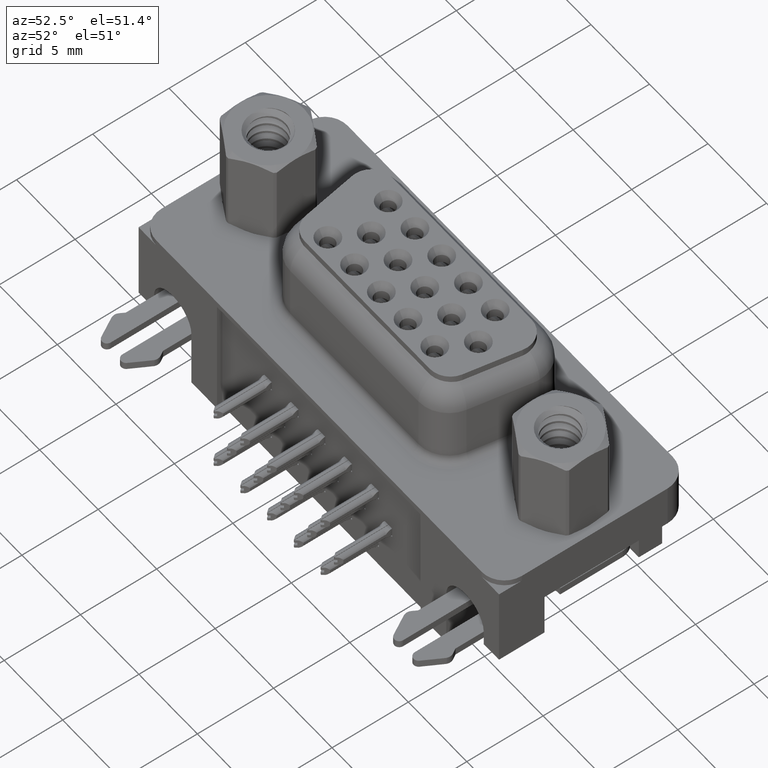
[diagram: clean part render]
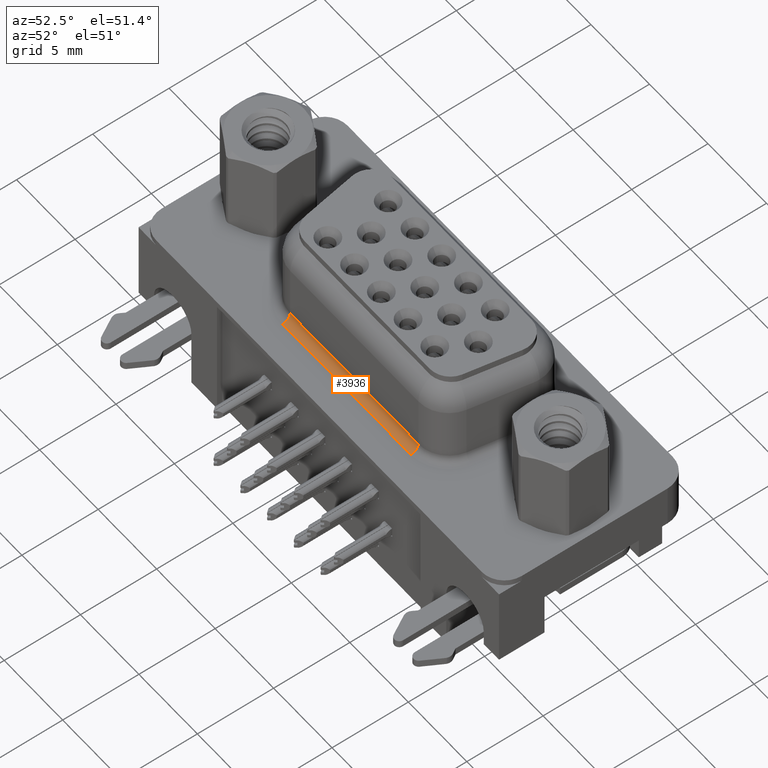
[diagram: same view with one face highlighted and labeled with its STEP entity id]
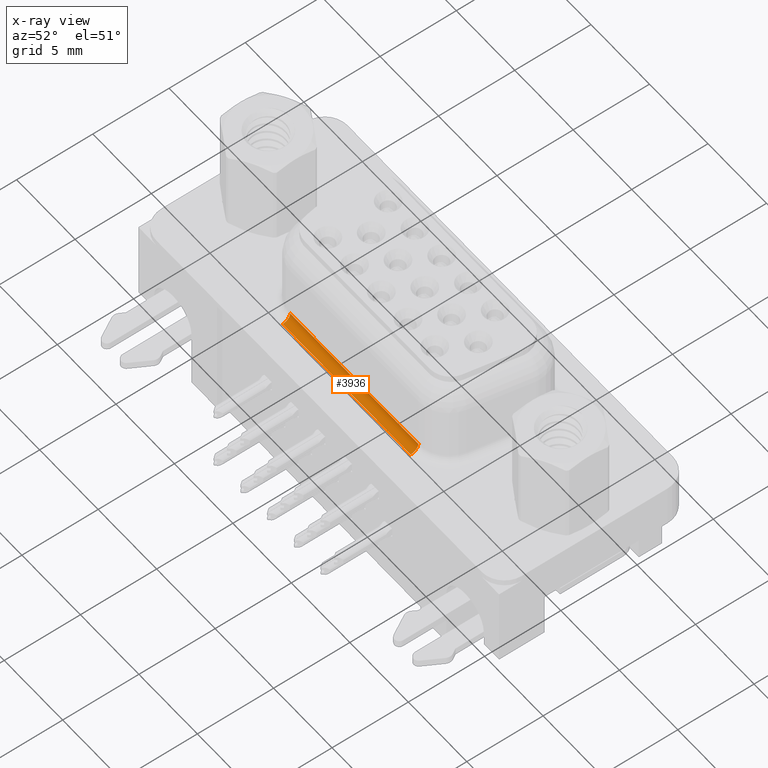
[diagram: x-ray of the same camera — body ghosted, the highlighted face saturated]
A machine part, auxiliary view. The second image highlights one B-rep face of the part: STEP entity #3936.
The next image is the same camera in x-ray: the body ghosted, the highlighted face saturated — about 0% of this face is hidden behind the body in this view.
In plain terms, the highlighted cylindrical surface (edge-blend (fillet) strip) has radius 0.5 mm, axis along (1, -0, 0).
Its self-contained STEP definition (entity closure, byte-faithful):
#297 = ORIENTED_EDGE ( 'NONE', *, *, #13589, .T. ) ;
#375 = LINE ( 'NONE', #23491, #26619 ) ;
#530 = DIRECTION ( 'NONE',  ( 0.0000000000000000000, 0.0000000000000000000, 1.000000000000000000 ) ) ;
#935 = CIRCLE ( 'NONE', #27445, 0.5000000000000000000 ) ;
#1019 = EDGE_CURVE ( 'NONE', #31242, #21424, #375, .T. ) ;
#1493 = VERTEX_POINT ( 'NONE', #4069 ) ;
#2214 = CYLINDRICAL_SURFACE ( 'NONE', #6435, 0.5000000000000004400 ) ;
#3081 = VERTEX_POINT ( 'NONE', #17535 ) ;
#3936 = ADVANCED_FACE ( 'NONE', ( #22449 ), #2214, .F. ) ;
#4069 = CARTESIAN_POINT ( 'NONE',  ( 17.97232477523701300, -4.450000000000002800, 0.4000000000000000200 ) ) ;
#5002 = ORIENTED_EDGE ( 'NONE', *, *, #1019, .F. ) ;
#5249 = CARTESIAN_POINT ( 'NONE',  ( 17.97232477523701300, -3.950000000000002800, 0.8999999999999998000 ) ) ;
#5754 = ORIENTED_EDGE ( 'NONE', *, *, #32528, .F. ) ;
#6435 = AXIS2_PLACEMENT_3D ( 'NONE', #23528, #25722, #25670 ) ;
#6806 = EDGE_CURVE ( 'NONE', #21424, #1493, #935, .T. ) ;
#7430 = DIRECTION ( 'NONE',  ( -1.000000000000000000, 0.0000000000000000000, 0.0000000000000000000 ) ) ;
#13589 = EDGE_CURVE ( 'NONE', #31242, #3081, #26938, .T. ) ;
#15743 = DIRECTION ( 'NONE',  ( -1.000000000000000000, 0.0000000000000000000, 0.0000000000000000000 ) ) ;
#17240 = DIRECTION ( 'NONE',  ( 1.000000000000000000, -1.583549951081495900E-016, 0.0000000000000000000 ) ) ;
#17535 = CARTESIAN_POINT ( 'NONE',  ( 7.017675224762986600, -4.450000000000001100, 0.4000000000000000200 ) ) ;
#18065 = AXIS2_PLACEMENT_3D ( 'NONE', #31086, #15743, #530 ) ;
#21424 = VERTEX_POINT ( 'NONE', #5249 ) ;
#21599 = DIRECTION ( 'NONE',  ( -1.000000000000000000, 1.583549951081495900E-016, -0.0000000000000000000 ) ) ;
#22449 = FACE_OUTER_BOUND ( 'NONE', #22570, .T. ) ;
#22570 = EDGE_LOOP ( 'NONE', ( #297, #5754, #23779, #5002 ) ) ;
#22612 = CARTESIAN_POINT ( 'NONE',  ( 17.97232477523701300, -4.450000000000002800, 0.8999999999999998000 ) ) ;
#23491 = CARTESIAN_POINT ( 'NONE',  ( 17.97232477523701300, -3.950000000000002800, 0.8999999999999998000 ) ) ;
#23528 = CARTESIAN_POINT ( 'NONE',  ( 17.97232477523701300, -4.450000000000002800, 0.8999999999999998000 ) ) ;
#23779 = ORIENTED_EDGE ( 'NONE', *, *, #6806, .F. ) ;
#24611 = LINE ( 'NONE', #29270, #29885 ) ;
#24818 = CARTESIAN_POINT ( 'NONE',  ( 7.017675224762986600, -3.950000000000001100, 0.8999999999999998000 ) ) ;
#25196 = DIRECTION ( 'NONE',  ( 0.0000000000000000000, 0.0000000000000000000, 1.000000000000000000 ) ) ;
#25670 = DIRECTION ( 'NONE',  ( 0.0000000000000000000, 1.000000000000000000, 0.0000000000000000000 ) ) ;
#25722 = DIRECTION ( 'NONE',  ( 1.000000000000000000, -1.583549951081495900E-016, 0.0000000000000000000 ) ) ;
#26619 = VECTOR ( 'NONE', #17240, 1000.000000000000000 ) ;
#26938 = CIRCLE ( 'NONE', #18065, 0.5000000000000000000 ) ;
#27445 = AXIS2_PLACEMENT_3D ( 'NONE', #22612, #7430, #25196 ) ;
#29270 = CARTESIAN_POINT ( 'NONE',  ( 26.39999999999999100, -4.450000000000003700, 0.4000000000000000200 ) ) ;
#29885 = VECTOR ( 'NONE', #21599, 1000.000000000000000 ) ;
#31086 = CARTESIAN_POINT ( 'NONE',  ( 7.017675224762986600, -4.450000000000001100, 0.8999999999999998000 ) ) ;
#31242 = VERTEX_POINT ( 'NONE', #24818 ) ;
#32528 = EDGE_CURVE ( 'NONE', #1493, #3081, #24611, .T. ) ;